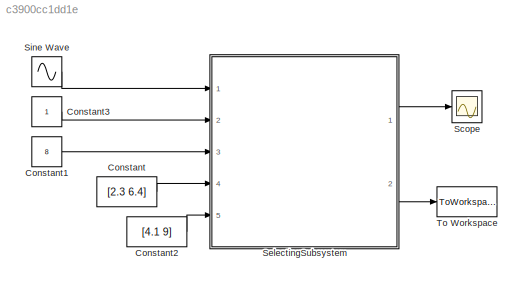
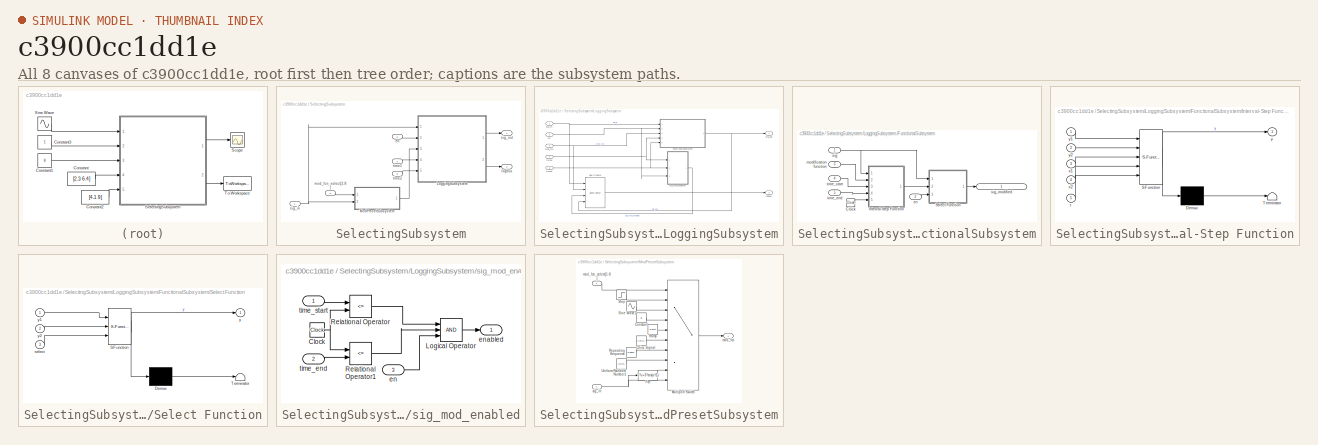
[diagram: thumbnail index - all 8 canvases of the model, root first then tree order]
MODEL slx_c3900cc1dd1e
KIND model
CONFIG AbsTol = auto
CONFIG EnableMultiTasking = off
CONFIG FixedStep = auto
CONFIG MaxStep = auto
CONFIG MinStep = auto
CONFIG RelTol = 1e-3
CONFIG SampleTimeConstraint = Unconstrained
CONFIG Solver = VariableStepAuto
CONFIG SolverName = VariableStepAuto
CONFIG StartTime = 0.0
CONFIG StopTime = 10.0
BLOCK [Constant] Constant
  Value = [2.3 6.4]
BLOCK [Constant] Constant1
  Value = 8
BLOCK [Constant] Constant2
  Value = [4.1 9]
BLOCK [Constant] Constant3
BLOCK [Scope] Scope
  Floating = off
  NumInputPorts = 1
  Ports = [1]
  ScopeSpecificationString = Simulink.scopes.TimeScopeBlockCfg('CurrentConfiguration', extmgr.ConfigurationSet(extmgr.Configuration('Core','General UI',true),extmgr.Configuration('Core','Source UI',true),extmgr.Configuration('Sources','WiredSimulink',true),extmgr.Configuration('Visuals','Time Domain',true,'SerializedDisplays',{struct('MinYLimReal','-2.78415','MaxYLimReal','7.66603','YLabelReal','','MinYLimMag','0.00000','MaxY...<+1401ch>
BLOCK [SubSystem] SelectingSubsystem
  Ports = [5, 2]
  RequestExecContextInheritance = off
BLOCK [SubSystem] SelectingSubsystem/LoggingSubsystem
  Ports = [5, 2]
  RequestExecContextInheritance = off
BLOCK [BusCreator] SelectingSubsystem/LoggingSubsystem/Bus Creator
  DisplayOption = bar
  InheritFromInputs = on
  Inputs = sig_in,mod_fcn,sig_mod_enabled,sig_out
  Ports = [4, 1]
BLOCK [SubSystem] SelectingSubsystem/LoggingSubsystem/FunctionalSubsystem
  Ports = [5, 1]
  RequestExecContextInheritance = off
  TreatAsAtomicUnit = on
BLOCK [Clock] SelectingSubsystem/LoggingSubsystem/FunctionalSubsystem/Clock
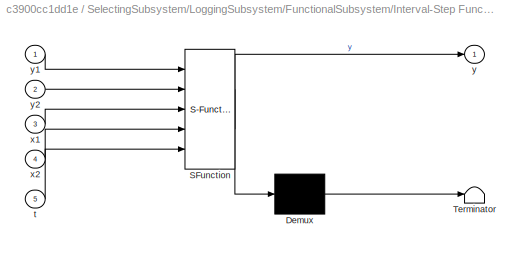
BLOCK [SubSystem] SelectingSubsystem/LoggingSubsystem/FunctionalSubsystem/Interval-Step Function
  ErrorFcn = Stateflow.Translate.translate
  PermitHierarchicalResolution = ExplicitOnly
  Ports = [5, 1]
  RequestExecContextInheritance = off
  SFBlockType = MATLAB Function
  TreatAsAtomicUnit = on
BLOCK [Demux] SelectingSubsystem/LoggingSubsystem/FunctionalSubsystem/Interval-Step Function/ Demux 
  Outputs = 1
  Ports = [1, 1]
BLOCK [S-Function] SelectingSubsystem/LoggingSubsystem/FunctionalSubsystem/Interval-Step Function/ SFunction 
  EnableBusSupport = on
  FunctionName = sf_sfun
  PortCounts = [5 2]
  Ports = [5, 2]
  SFcnIsStateOwnerBlock = off
  SFunctionDeploymentMode = off
  Tag = Stateflow S-Function sig_mod_block_6 1
BLOCK [Terminator] SelectingSubsystem/LoggingSubsystem/FunctionalSubsystem/Interval-Step Function/ Terminator 
BLOCK [Inport] SelectingSubsystem/LoggingSubsystem/FunctionalSubsystem/Interval-Step Function/t
  IconDisplay = Port number
  Port = 5
BLOCK [Inport] SelectingSubsystem/LoggingSubsystem/FunctionalSubsystem/Interval-Step Function/x1
  IconDisplay = Port number
  Port = 3
BLOCK [Inport] SelectingSubsystem/LoggingSubsystem/FunctionalSubsystem/Interval-Step Function/x2
  IconDisplay = Port number
  Port = 4
BLOCK [Outport] SelectingSubsystem/LoggingSubsystem/FunctionalSubsystem/Interval-Step Function/y
  IconDisplay = Port number
BLOCK [Inport] SelectingSubsystem/LoggingSubsystem/FunctionalSubsystem/Interval-Step Function/y1
  IconDisplay = Port number
BLOCK [Inport] SelectingSubsystem/LoggingSubsystem/FunctionalSubsystem/Interval-Step Function/y2
  IconDisplay = Port number
  Port = 2
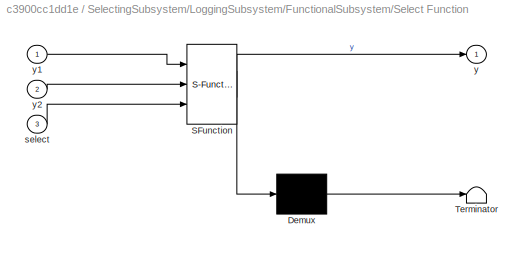
BLOCK [SubSystem] SelectingSubsystem/LoggingSubsystem/FunctionalSubsystem/Select Function
  ErrorFcn = Stateflow.Translate.translate
  PermitHierarchicalResolution = ExplicitOnly
  Ports = [3, 1]
  RequestExecContextInheritance = off
  SFBlockType = MATLAB Function
  TreatAsAtomicUnit = on
BLOCK [Demux] SelectingSubsystem/LoggingSubsystem/FunctionalSubsystem/Select Function/ Demux 
  Outputs = 1
  Ports = [1, 1]
BLOCK [S-Function] SelectingSubsystem/LoggingSubsystem/FunctionalSubsystem/Select Function/ SFunction 
  EnableBusSupport = on
  FunctionName = sf_sfun
  PortCounts = [3 2]
  Ports = [3, 2]
  SFcnIsStateOwnerBlock = off
  SFunctionDeploymentMode = off
  Tag = Stateflow S-Function sig_mod_block_6 4
BLOCK [Terminator] SelectingSubsystem/LoggingSubsystem/FunctionalSubsystem/Select Function/ Terminator 
BLOCK [Inport] SelectingSubsystem/LoggingSubsystem/FunctionalSubsystem/Select Function/select
  IconDisplay = Port number
  Port = 3
BLOCK [Outport] SelectingSubsystem/LoggingSubsystem/FunctionalSubsystem/Select Function/y
  IconDisplay = Port number
BLOCK [Inport] SelectingSubsystem/LoggingSubsystem/FunctionalSubsystem/Select Function/y1
  IconDisplay = Port number
BLOCK [Inport] SelectingSubsystem/LoggingSubsystem/FunctionalSubsystem/Select Function/y2
  IconDisplay = Port number
  Port = 2
BLOCK [Inport] SelectingSubsystem/LoggingSubsystem/FunctionalSubsystem/en
  IconDisplay = Port number
  Port = 2
BLOCK [Inport] SelectingSubsystem/LoggingSubsystem/FunctionalSubsystem/modification function
  IconDisplay = Port number
  Port = 3
BLOCK [Inport] SelectingSubsystem/LoggingSubsystem/FunctionalSubsystem/sig
  IconDisplay = Port number
BLOCK [Outport] SelectingSubsystem/LoggingSubsystem/FunctionalSubsystem/sig_modified
  IconDisplay = Port number
BLOCK [Inport] SelectingSubsystem/LoggingSubsystem/FunctionalSubsystem/time_end
  IconDisplay = Port number
  Port = 5
BLOCK [Inport] SelectingSubsystem/LoggingSubsystem/FunctionalSubsystem/time_start
  IconDisplay = Port number
  Port = 4
BLOCK [Inport] SelectingSubsystem/LoggingSubsystem/en
  IconDisplay = Port number
  Port = 2
BLOCK [Outport] SelectingSubsystem/LoggingSubsystem/logbus
  IconDisplay = Port number
  Port = 2
BLOCK [Inport] SelectingSubsystem/LoggingSubsystem/mod_fcn
  IconDisplay = Port number
  Port = 3
BLOCK [Inport] SelectingSubsystem/LoggingSubsystem/sig_in
  IconDisplay = Port number
BLOCK [SubSystem] SelectingSubsystem/LoggingSubsystem/sig_mod_enabled
  Ports = [3, 1]
  RequestExecContextInheritance = off
BLOCK [Clock] SelectingSubsystem/LoggingSubsystem/sig_mod_enabled/Clock
BLOCK [Logic] SelectingSubsystem/LoggingSubsystem/sig_mod_enabled/Logical Operator
  AllPortsSameDT = off
  Inputs = 3
  OutDataTypeStr = boolean
  Ports = [3, 1]
BLOCK [RelationalOperator] SelectingSubsystem/LoggingSubsystem/sig_mod_enabled/Relational Operator
  InputSameDT = off
  Operator = <=
  OutDataTypeStr = boolean
  Ports = [2, 1]
  RndMeth = Simplest
BLOCK [RelationalOperator] SelectingSubsystem/LoggingSubsystem/sig_mod_enabled/Relational Operator1
  InputSameDT = off
  Operator = <=
  OutDataTypeStr = boolean
  Ports = [2, 1]
  RndMeth = Simplest
BLOCK [Inport] SelectingSubsystem/LoggingSubsystem/sig_mod_enabled/en
  IconDisplay = Port number
  Port = 3
BLOCK [Outport] SelectingSubsystem/LoggingSubsystem/sig_mod_enabled/enabled
  IconDisplay = Port number
BLOCK [Inport] SelectingSubsystem/LoggingSubsystem/sig_mod_enabled/time_end
  IconDisplay = Port number
  Port = 2
BLOCK [Inport] SelectingSubsystem/LoggingSubsystem/sig_mod_enabled/time_start
  IconDisplay = Port number
BLOCK [Outport] SelectingSubsystem/LoggingSubsystem/sig_out
  IconDisplay = Port number
BLOCK [Inport] SelectingSubsystem/LoggingSubsystem/time1
  IconDisplay = Port number
  Port = 4
BLOCK [Inport] SelectingSubsystem/LoggingSubsystem/time2
  IconDisplay = Port number
  Port = 5
BLOCK [SubSystem] SelectingSubsystem/ModPresetSubsystem
  Ports = [2, 1]
  RequestExecContextInheritance = off
BLOCK [Reference] SelectingSubsystem/ModPresetSubsystem/Chirp Signal  REF=simulink/Sources/Chirp Signal
  Ports = [0, 1]
  SourceBlock = simulink/Sources/Chirp Signal
  SourceProductBaseCode = SL
  SourceProductName = Simulink
  SourceType = chirp
BLOCK [Constant] SelectingSubsystem/ModPresetSubsystem/Constant
  Value = pi
BLOCK [Fcn] SelectingSubsystem/ModPresetSubsystem/Fcn
  Expr = 5*u+3*cos(u^2)
BLOCK [MultiPortSwitch] SelectingSubsystem/ModPresetSubsystem/Multiport Switch
  DataPortForDefault = Additional data port
  DiagnosticForDefault = Warning
  InputSameDT = off
  Inputs = 8
  Ports = [10, 1]
  SaturateOnIntegerOverflow = off
BLOCK [Reference] SelectingSubsystem/ModPresetSubsystem/Ramp  REF=simulink/Sources/Ramp
  Ports = [0, 1]
  SourceBlock = simulink/Sources/Ramp
  SourceProductBaseCode = SL
  SourceProductName = Simulink
  SourceType = Ramp
BLOCK [Reference] SelectingSubsystem/ModPresetSubsystem/Repeating Sequence  REF=simulink/Sources/Repeating
Sequence
  Ports = [0, 1]
  SourceBlock = simulink/Sources/Repeating\nSequence
  SourceProductBaseCode = SL
  SourceProductName = Simulink
  SourceType = Repeating table
BLOCK [Sin] SelectingSubsystem/ModPresetSubsystem/Sine Wave1
  Frequency = 1000
  Ports = [0, 1]
  SampleTime = 0
BLOCK [Step] SelectingSubsystem/ModPresetSubsystem/Step
  SampleTime = 0
  Time = 5
BLOCK [UniformRandomNumber] SelectingSubsystem/ModPresetSubsystem/Uniform Random Number1
  SampleTime = 0.1
BLOCK [Outport] SelectingSubsystem/ModPresetSubsystem/mod_fcn
  IconDisplay = Port number
BLOCK [Inport] SelectingSubsystem/ModPresetSubsystem/mod_fcn_select[1:8]
  IconDisplay = Port number
BLOCK [Inport] SelectingSubsystem/ModPresetSubsystem/sig_in
  IconDisplay = Port number
  Port = 2
BLOCK [Inport] SelectingSubsystem/en
  IconDisplay = Port number
  Port = 2
BLOCK [Outport] SelectingSubsystem/logbus
  IconDisplay = Port number
  Port = 2
BLOCK [Inport] SelectingSubsystem/mod_fcn_select[1:8]
  IconDisplay = Port number
  Port = 3
BLOCK [Inport] SelectingSubsystem/sig_in
  IconDisplay = Port number
BLOCK [Outport] SelectingSubsystem/sig_out
  IconDisplay = Port number
BLOCK [Inport] SelectingSubsystem/time1
  IconDisplay = Port number
  Port = 4
BLOCK [Inport] SelectingSubsystem/time2
  IconDisplay = Port number
  Port = 5
BLOCK [Sin] Sine Wave
  Ports = [0, 1]
  SampleTime = 0
BLOCK [ToWorkspace] To Workspace
  FixptAsFi = on
  MaxDataPoints = inf
  Ports = [1]
  SampleTime = -1
  SaveFormat = Timeseries
  VariableName = sub1
LINE Constant1:1 -> SelectingSubsystem:3
LINE Constant2:1 -> SelectingSubsystem:5
LINE Constant3:1 -> SelectingSubsystem:2
LINE Constant:1 -> SelectingSubsystem:4
LINE SelectingSubsystem/LoggingSubsystem/Bus Creator:1 -> SelectingSubsystem/LoggingSubsystem/logbus:1
LINE SelectingSubsystem/LoggingSubsystem/FunctionalSubsystem/Clock:1 -> SelectingSubsystem/LoggingSubsystem/FunctionalSubsystem/Interval-Step Function:5
LINE SelectingSubsystem/LoggingSubsystem/FunctionalSubsystem/Interval-Step Function:1 -> SelectingSubsystem/LoggingSubsystem/FunctionalSubsystem/Select Function:2
LINE SelectingSubsystem/LoggingSubsystem/FunctionalSubsystem/Select Function:1 -> SelectingSubsystem/LoggingSubsystem/FunctionalSubsystem/sig_modified:1
LINE SelectingSubsystem/LoggingSubsystem/FunctionalSubsystem/en:1 -> SelectingSubsystem/LoggingSubsystem/FunctionalSubsystem/Select Function:3
LINE SelectingSubsystem/LoggingSubsystem/FunctionalSubsystem/modification function:1 -> SelectingSubsystem/LoggingSubsystem/FunctionalSubsystem/Interval-Step Function:2
NET SelectingSubsystem/LoggingSubsystem/FunctionalSubsystem/sig:1 -> SelectingSubsystem/LoggingSubsystem/FunctionalSubsystem/Interval-Step Function:1, SelectingSubsystem/LoggingSubsystem/FunctionalSubsystem/Select Function:1
LINE SelectingSubsystem/LoggingSubsystem/FunctionalSubsystem/time_end:1 -> SelectingSubsystem/LoggingSubsystem/FunctionalSubsystem/Interval-Step Function:4
LINE SelectingSubsystem/LoggingSubsystem/FunctionalSubsystem/time_start:1 -> SelectingSubsystem/LoggingSubsystem/FunctionalSubsystem/Interval-Step Function:3
NET SelectingSubsystem/LoggingSubsystem/FunctionalSubsystem:1 -> SelectingSubsystem/LoggingSubsystem/Bus Creator:4, SelectingSubsystem/LoggingSubsystem/sig_out:1
NET SelectingSubsystem/LoggingSubsystem/en:1 -> SelectingSubsystem/LoggingSubsystem/FunctionalSubsystem:2, SelectingSubsystem/LoggingSubsystem/sig_mod_enabled:3
NET SelectingSubsystem/LoggingSubsystem/mod_fcn:1 -> SelectingSubsystem/LoggingSubsystem/Bus Creator:2, SelectingSubsystem/LoggingSubsystem/FunctionalSubsystem:3
NET SelectingSubsystem/LoggingSubsystem/sig_in:1 -> SelectingSubsystem/LoggingSubsystem/Bus Creator:1, SelectingSubsystem/LoggingSubsystem/FunctionalSubsystem:1
NET SelectingSubsystem/LoggingSubsystem/sig_mod_enabled/Clock:1 -> SelectingSubsystem/LoggingSubsystem/sig_mod_enabled/Relational Operator1:1, SelectingSubsystem/LoggingSubsystem/sig_mod_enabled/Relational Operator:2
LINE SelectingSubsystem/LoggingSubsystem/sig_mod_enabled/Logical Operator:1 -> SelectingSubsystem/LoggingSubsystem/sig_mod_enabled/enabled:1
LINE SelectingSubsystem/LoggingSubsystem/sig_mod_enabled/Relational Operator1:1 -> SelectingSubsystem/LoggingSubsystem/sig_mod_enabled/Logical Operator:2
LINE SelectingSubsystem/LoggingSubsystem/sig_mod_enabled/Relational Operator:1 -> SelectingSubsystem/LoggingSubsystem/sig_mod_enabled/Logical Operator:1
LINE SelectingSubsystem/LoggingSubsystem/sig_mod_enabled/en:1 -> SelectingSubsystem/LoggingSubsystem/sig_mod_enabled/Logical Operator:3
LINE SelectingSubsystem/LoggingSubsystem/sig_mod_enabled/time_end:1 -> SelectingSubsystem/LoggingSubsystem/sig_mod_enabled/Relational Operator1:2
LINE SelectingSubsystem/LoggingSubsystem/sig_mod_enabled/time_start:1 -> SelectingSubsystem/LoggingSubsystem/sig_mod_enabled/Relational Operator:1
LINE SelectingSubsystem/LoggingSubsystem/sig_mod_enabled:1 -> SelectingSubsystem/LoggingSubsystem/Bus Creator:3
NET SelectingSubsystem/LoggingSubsystem/time1:1 -> SelectingSubsystem/LoggingSubsystem/FunctionalSubsystem:4, SelectingSubsystem/LoggingSubsystem/sig_mod_enabled:1
NET SelectingSubsystem/LoggingSubsystem/time2:1 -> SelectingSubsystem/LoggingSubsystem/FunctionalSubsystem:5, SelectingSubsystem/LoggingSubsystem/sig_mod_enabled:2
LINE SelectingSubsystem/LoggingSubsystem:1 -> SelectingSubsystem/sig_out:1
LINE SelectingSubsystem/LoggingSubsystem:2 -> SelectingSubsystem/logbus:1
LINE SelectingSubsystem/ModPresetSubsystem/Chirp Signal:1 -> SelectingSubsystem/ModPresetSubsystem/Multiport Switch:6
LINE SelectingSubsystem/ModPresetSubsystem/Constant:1 -> SelectingSubsystem/ModPresetSubsystem/Multiport Switch:4
LINE SelectingSubsystem/ModPresetSubsystem/Fcn:1 -> SelectingSubsystem/ModPresetSubsystem/Multiport Switch:9
LINE SelectingSubsystem/ModPresetSubsystem/Multiport Switch:1 -> SelectingSubsystem/ModPresetSubsystem/mod_fcn:1
LINE SelectingSubsystem/ModPresetSubsystem/Ramp:1 -> SelectingSubsystem/ModPresetSubsystem/Multiport Switch:5
LINE SelectingSubsystem/ModPresetSubsystem/Repeating Sequence:1 -> SelectingSubsystem/ModPresetSubsystem/Multiport Switch:7
LINE SelectingSubsystem/ModPresetSubsystem/Sine Wave1:1 -> SelectingSubsystem/ModPresetSubsystem/Multiport Switch:3
LINE SelectingSubsystem/ModPresetSubsystem/Step:1 -> SelectingSubsystem/ModPresetSubsystem/Multiport Switch:2
LINE SelectingSubsystem/ModPresetSubsystem/Uniform Random Number1:1 -> SelectingSubsystem/ModPresetSubsystem/Multiport Switch:8
LINE SelectingSubsystem/ModPresetSubsystem/mod_fcn_select[1:8]:1 -> SelectingSubsystem/ModPresetSubsystem/Multiport Switch:1
NET SelectingSubsystem/ModPresetSubsystem/sig_in:1 -> SelectingSubsystem/ModPresetSubsystem/Fcn:1, SelectingSubsystem/ModPresetSubsystem/Multiport Switch:10
LINE SelectingSubsystem/ModPresetSubsystem:1 -> SelectingSubsystem/LoggingSubsystem:3
LINE SelectingSubsystem/en:1 -> SelectingSubsystem/LoggingSubsystem:2
LINE SelectingSubsystem/mod_fcn_select[1:8]:1 -> SelectingSubsystem/ModPresetSubsystem:1
NET SelectingSubsystem/sig_in:1 -> SelectingSubsystem/LoggingSubsystem:1, SelectingSubsystem/ModPresetSubsystem:2
LINE SelectingSubsystem/time1:1 -> SelectingSubsystem/LoggingSubsystem:4
LINE SelectingSubsystem/time2:1 -> SelectingSubsystem/LoggingSubsystem:5
LINE SelectingSubsystem:1 -> Scope:1
LINE SelectingSubsystem:2 -> To Workspace:1
LINE Sine Wave:1 -> SelectingSubsystem:1
note: NET lines group one-source signal fan-out (src -> all destinations, sorted); 1:1 wires keep LINE
CHART SelectingSubsystem/LoggingSubsystem/FunctionalSubsystem/Interval-Step Function states=1 transitions=1
  STATE_LABEL 'eML_blk_kernel()'
  STATE_LABEL "SCRIPT:\nfunction y = fcn(y1,y2,x1,x2,t)\n\nif length(x1)~=length(x2)\n    error('Interval-Step Function Error: time1 vector and time2 vector are not same length');\nend\ny=y1;\nfor i=1:1:length(x1)\n    if (x1(i)<=t)&&(t<x2(i))\n        y=y2;\n    end\nend"
CHART SelectingSubsystem/LoggingSubsystem/FunctionalSubsystem/Select Function states=1 transitions=1
  STATE_LABEL 'eML_blk_kernel()'
  STATE_LABEL 'SCRIPT:\nfunction y = fcn(y1,y2,select)\n\nif select>=1\n    y=y2;\nelse\n    y=y1;\nend'
